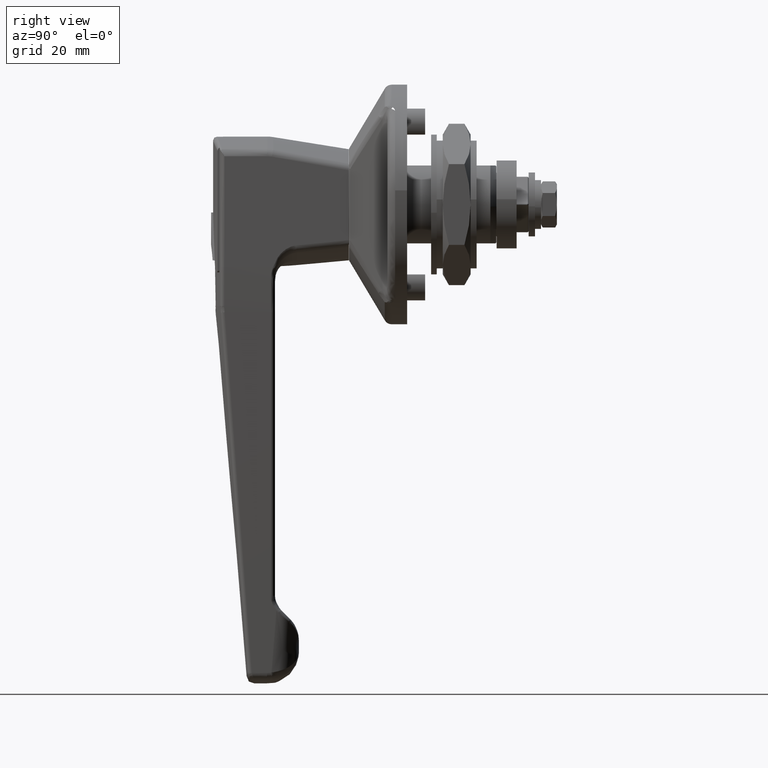
[diagram: clean part render]
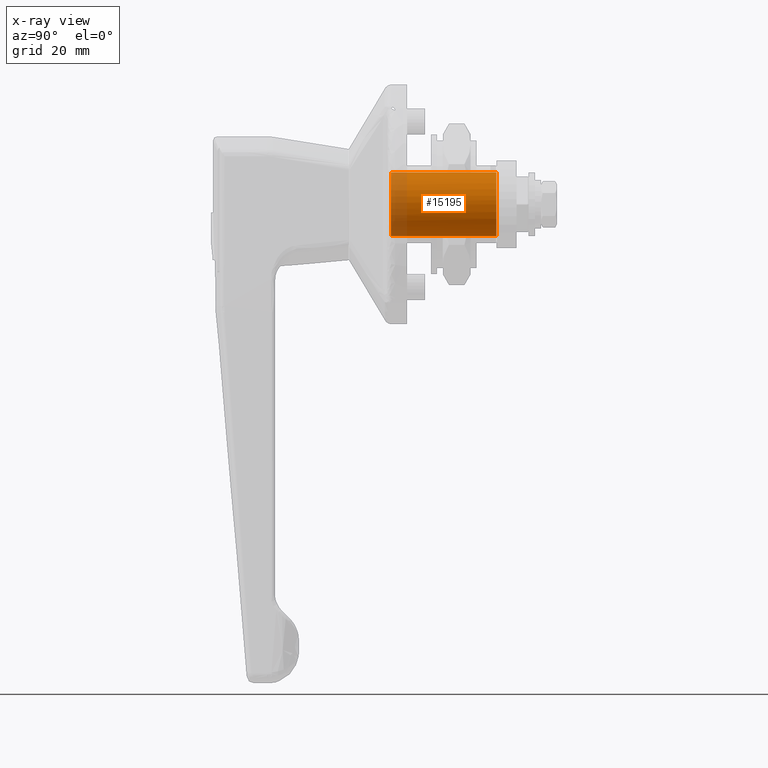
[diagram: x-ray — body ghosted, one internal face saturated and labeled with its STEP entity id]
A machine part, right view, then the same camera in x-ray: the body is ghosted and one INTERNAL B-rep face — a face not visible from any outside direction — is saturated and labeled: STEP entity #15195.
In plain terms, the highlighted face is a freeform B-spline surface patch.
Its self-contained STEP definition (entity closure, byte-faithful):
#15072=CARTESIAN_POINT('',(-4.761250000001135,6.285012620900386,4.949607697093057));
#15073=CARTESIAN_POINT('',(-4.761250000001135,6.143356975104874,5.129482058079175));
#15074=CARTESIAN_POINT('',(-4.761250000001134,5.991645766312015,5.300960385725898));
#15075=CARTESIAN_POINT('',(-4.761250000001134,0.690685380586117,11.292606152037912));
#15076=CARTESIAN_POINT('',(-4.761250000001134,-5.300960385725898,5.991645766312015));
#15077=CARTESIAN_POINT('',(-4.761250000001134,-11.292606152037912,0.690685380586117));
#15078=CARTESIAN_POINT('',(-4.761250000001134,-5.991645766312015,-5.300960385725898));
#15079=CARTESIAN_POINT('',(-4.761250000001134,-0.690685380586117,-11.292606152037912));
#15080=CARTESIAN_POINT('',(-4.761250000001134,5.300960385725898,-5.991645766312015));
#15081=CARTESIAN_POINT('',(23.027781250000036,6.285012620900386,4.949607697093057));
#15082=CARTESIAN_POINT('',(23.027781250000036,6.143356975104874,5.129482058079175));
#15083=CARTESIAN_POINT('',(23.027781250000029,5.991645766312015,5.300960385725898));
#15084=CARTESIAN_POINT('',(23.027781250000036,0.690685380586117,11.292606152037912));
#15085=CARTESIAN_POINT('',(23.027781250000029,-5.300960385725898,5.991645766312015));
#15086=CARTESIAN_POINT('',(23.027781250000036,-11.292606152037912,0.690685380586117));
#15087=CARTESIAN_POINT('',(23.027781250000029,-5.991645766312015,-5.300960385725898));
#15088=CARTESIAN_POINT('',(23.027781250000036,-0.690685380586117,-11.292606152037912));
#15089=CARTESIAN_POINT('',(23.027781250000029,5.300960385725898,-5.991645766312015));
#15097=(BOUNDED_SURFACE()B_SPLINE_SURFACE(2,1,((#15072,#15081),(#15073,#15082),(#15074,#15083),(#15075,#15084),(#15076,#15085),(#15077,#15086),(#15078,#15087),(#15079,#15088),(#15080,#15089)),.UNSPECIFIED.,.F.,.F.,.U.)B_SPLINE_SURFACE_WITH_KNOTS((3,2,2,2,3),(2,2),(0.0,0.530193359837562,13.785027355776601,27.039861351715629,40.294695347654667),(0.0,27.789031250001170),.UNSPECIFIED.)GEOMETRIC_REPRESENTATION_ITEM()RATIONAL_B_SPLINE_SURFACE(((0.977505800795127,0.977505800795127),(0.988284271247462,0.988284271247462),(1.0,1.0),(0.707106781186548,0.707106781186548),(1.0,1.0),(0.707106781186548,0.707106781186548),(1.0,1.0),(0.707106781186548,0.707106781186548),(1.0,1.0)))REPRESENTATION_ITEM('')SURFACE());
#15098=CARTESIAN_POINT('',(-4.100000000000939,6.285019561210540,4.949598884260726));
#15099=VERTEX_POINT('',#15098);
#15100=CARTESIAN_POINT('',(-4.100000000001105,0.0,8.0));
#15101=VERTEX_POINT('',#15100);
#15102=CARTESIAN_POINT('',(-4.100000000000939,6.285019561210540,4.949598884260726));
#15103=CARTESIAN_POINT('',(-4.100000000001105,3.882757832045800,8.0));
#15104=CARTESIAN_POINT('',(-4.100000000001105,0.0,8.0));
#15112=(BOUNDED_CURVE()B_SPLINE_CURVE(2,(#15102,#15103,#15104),.UNSPECIFIED.,.F.,.U.)B_SPLINE_CURVE_WITH_KNOTS((3,3),(0.857127328572376,1.0),.UNSPECIFIED.)CURVE()GEOMETRIC_REPRESENTATION_ITEM()RATIONAL_B_SPLINE_CURVE((0.856547297125474,0.832614253540345,1.0))REPRESENTATION_ITEM(''));
#15113=EDGE_CURVE('',#15099,#15101,#15112,.T.);
#15114=ORIENTED_EDGE('',*,*,#15113,.F.);
#15115=CARTESIAN_POINT('',(22.350000000000001,6.285019477601114,4.949598990428596));
#15116=VERTEX_POINT('',#15115);
#15117=CARTESIAN_POINT('',(-4.100000000000939,6.285019561210540,4.949598884260726));
#15118=CARTESIAN_POINT('',(22.350000000000001,6.285019477601114,4.949598990428596));
#15119=QUASI_UNIFORM_CURVE('',1,(#15117,#15118),.UNSPECIFIED.,.F.,.U.);
#15120=EDGE_CURVE('',#15099,#15116,#15119,.T.);
#15121=ORIENTED_EDGE('',*,*,#15120,.T.);
#15122=CARTESIAN_POINT('',(22.350000000000001,-8.0,0.0));
#15123=VERTEX_POINT('',#15122);
#15124=CARTESIAN_POINT('',(22.349999999999994,6.285019477601114,4.949598990428596));
#15125=CARTESIAN_POINT('',(22.349999999999998,3.882757748560566,8.000000000000002));
#15126=CARTESIAN_POINT('',(22.350000000000001,0.0,8.0));
#15127=CARTESIAN_POINT('',(22.350000000000001,-8.0,8.0));
#15128=CARTESIAN_POINT('',(22.350000000000001,-8.0,0.0));
#15136=(BOUNDED_CURVE()B_SPLINE_CURVE(2,(#15124,#15125,#15126,#15127,#15128),.UNSPECIFIED.,.F.,.U.)B_SPLINE_CURVE_WITH_KNOTS((3,2,3),(0.107127331130151,0.250000000000000,0.500000000000000),.UNSPECIFIED.)CURVE()GEOMETRIC_REPRESENTATION_ITEM()RATIONAL_B_SPLINE_CURVE((0.856547296268552,0.832614256536965,1.0,0.707106781186548,1.0))REPRESENTATION_ITEM(''));
#15137=EDGE_CURVE('',#15116,#15123,#15136,.T.);
#15138=ORIENTED_EDGE('',*,*,#15137,.T.);
#15139=CARTESIAN_POINT('',(22.350000000000001,5.300956051538616,-5.991649600871417));
#15140=VERTEX_POINT('',#15139);
#15141=CARTESIAN_POINT('',(22.350000000000001,-8.0,0.0));
#15142=CARTESIAN_POINT('',(22.350000000000001,-8.0,-8.0));
#15143=CARTESIAN_POINT('',(22.350000000000001,0.0,-8.0));
#15144=CARTESIAN_POINT('',(22.350000000000001,3.030925560748326,-8.000000000000002));
#15145=CARTESIAN_POINT('',(22.349999999999994,5.300956051538616,-5.991649600871417));
#15153=(BOUNDED_CURVE()B_SPLINE_CURVE(2,(#15141,#15142,#15143,#15144,#15145),.UNSPECIFIED.,.F.,.U.)B_SPLINE_CURVE_WITH_KNOTS((3,2,3),(0.500000000000000,0.750000000000000,0.865779778809385),.UNSPECIFIED.)CURVE()GEOMETRIC_REPRESENTATION_ITEM()RATIONAL_B_SPLINE_CURVE((1.0,0.707106781186548,1.0,0.864355551644038,0.854350177107071))REPRESENTATION_ITEM(''));
#15154=EDGE_CURVE('',#15123,#15140,#15153,.T.);
#15155=ORIENTED_EDGE('',*,*,#15154,.T.);
#15156=CARTESIAN_POINT('',(-4.100000000000984,5.300956545040954,-5.991649164258631));
#15157=VERTEX_POINT('',#15156);
#15158=CARTESIAN_POINT('',(-4.100000000000984,5.300956545040954,-5.991649164258631));
#15159=CARTESIAN_POINT('',(22.350000000000001,5.300956051538616,-5.991649600871417));
#15160=QUASI_UNIFORM_CURVE('',1,(#15158,#15159),.UNSPECIFIED.,.F.,.U.);
#15161=EDGE_CURVE('',#15157,#15140,#15160,.T.);
#15162=ORIENTED_EDGE('',*,*,#15161,.F.);
#15163=CARTESIAN_POINT('',(-4.100000000001105,0.0,-8.0));
#15164=VERTEX_POINT('',#15163);
#15165=CARTESIAN_POINT('',(-4.100000000001105,0.0,-8.0));
#15166=CARTESIAN_POINT('',(-4.100000000001105,3.030925937498636,-8.000000000000002));
#15167=CARTESIAN_POINT('',(-4.100000000000984,5.300956545040954,-5.991649164258631));
#15175=(BOUNDED_CURVE()B_SPLINE_CURVE(2,(#15165,#15166,#15167),.UNSPECIFIED.,.F.,.U.)B_SPLINE_CURVE_WITH_KNOTS((3,3),(0.500000000000000,0.615779791248901),.UNSPECIFIED.)CURVE()GEOMETRIC_REPRESENTATION_ITEM()RATIONAL_B_SPLINE_CURVE((1.0,0.864355537070239,0.854350174957094))REPRESENTATION_ITEM(''));
#15176=EDGE_CURVE('',#15164,#15157,#15175,.T.);
#15177=ORIENTED_EDGE('',*,*,#15176,.F.);
#15178=CARTESIAN_POINT('',(-4.100000000001105,0.0,8.0));
#15179=CARTESIAN_POINT('',(-4.100000000001105,-8.0,8.0));
#15180=CARTESIAN_POINT('',(-4.100000000001105,-8.0,0.0));
#15181=CARTESIAN_POINT('',(-4.100000000001105,-8.0,-8.0));
#15182=CARTESIAN_POINT('',(-4.100000000001105,0.0,-8.0));
#15190=(BOUNDED_CURVE()B_SPLINE_CURVE(2,(#15178,#15179,#15180,#15181,#15182),.UNSPECIFIED.,.F.,.U.)B_SPLINE_CURVE_WITH_KNOTS((3,2,3),(0.0,0.250000000000000,0.500000000000000),.UNSPECIFIED.)CURVE()GEOMETRIC_REPRESENTATION_ITEM()RATIONAL_B_SPLINE_CURVE((1.0,0.707106781186548,1.0,0.707106781186548,1.0))REPRESENTATION_ITEM(''));
#15191=EDGE_CURVE('',#15101,#15164,#15190,.T.);
#15192=ORIENTED_EDGE('',*,*,#15191,.F.);
#15193=EDGE_LOOP('',(#15114,#15121,#15138,#15155,#15162,#15177,#15192));
#15194=FACE_OUTER_BOUND('',#15193,.T.);
#15195=ADVANCED_FACE('',(#15194),#15097,.F.);